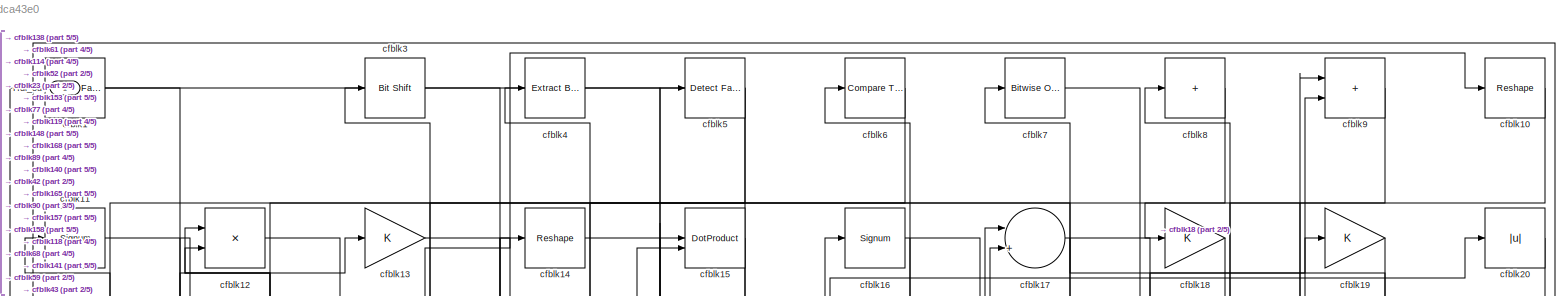
[diagram: root canvas - part 1/5, full width, top band]
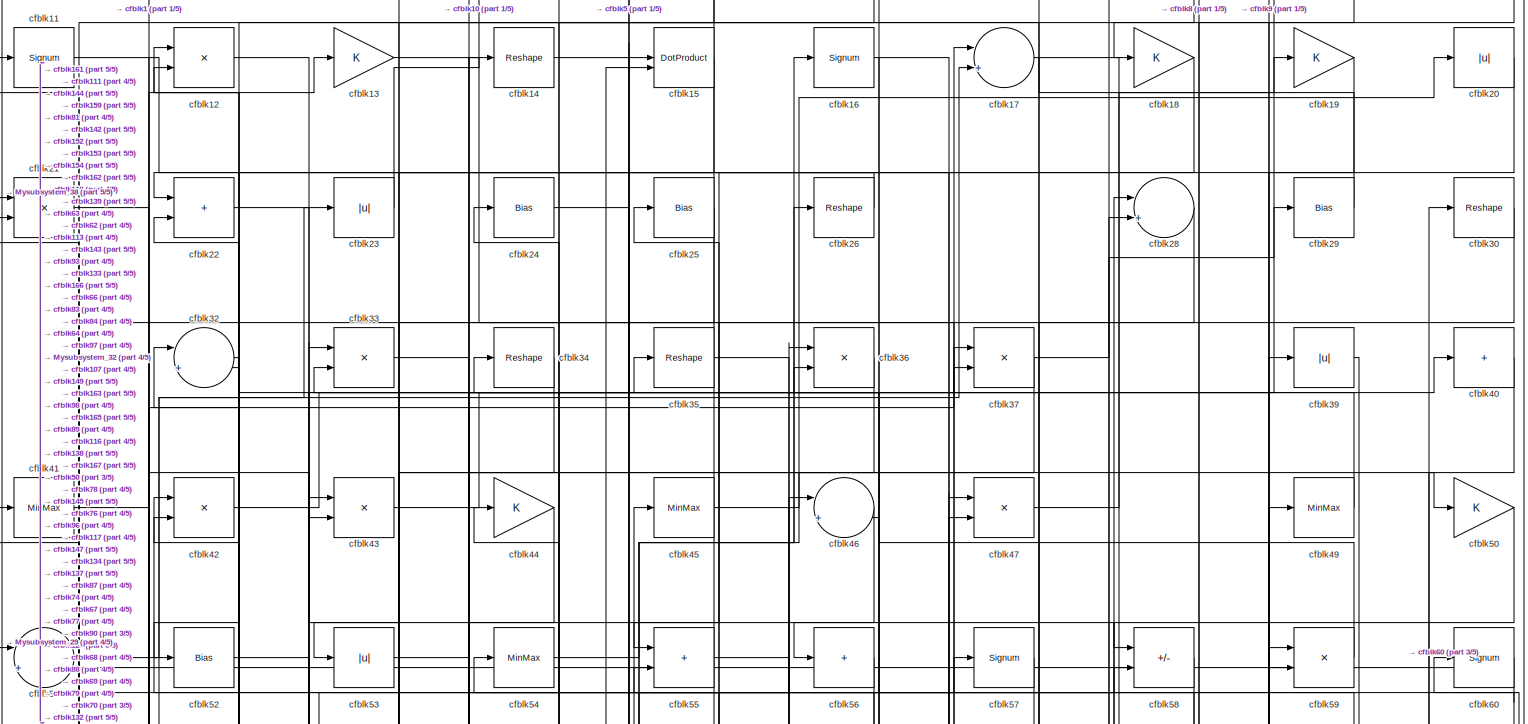
[diagram: root canvas - part 2/5, full width, top band]
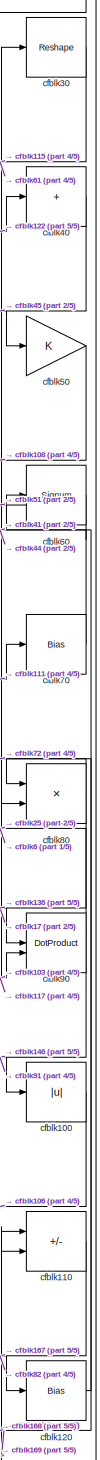
[diagram: root canvas - part 3/5, middle right region]
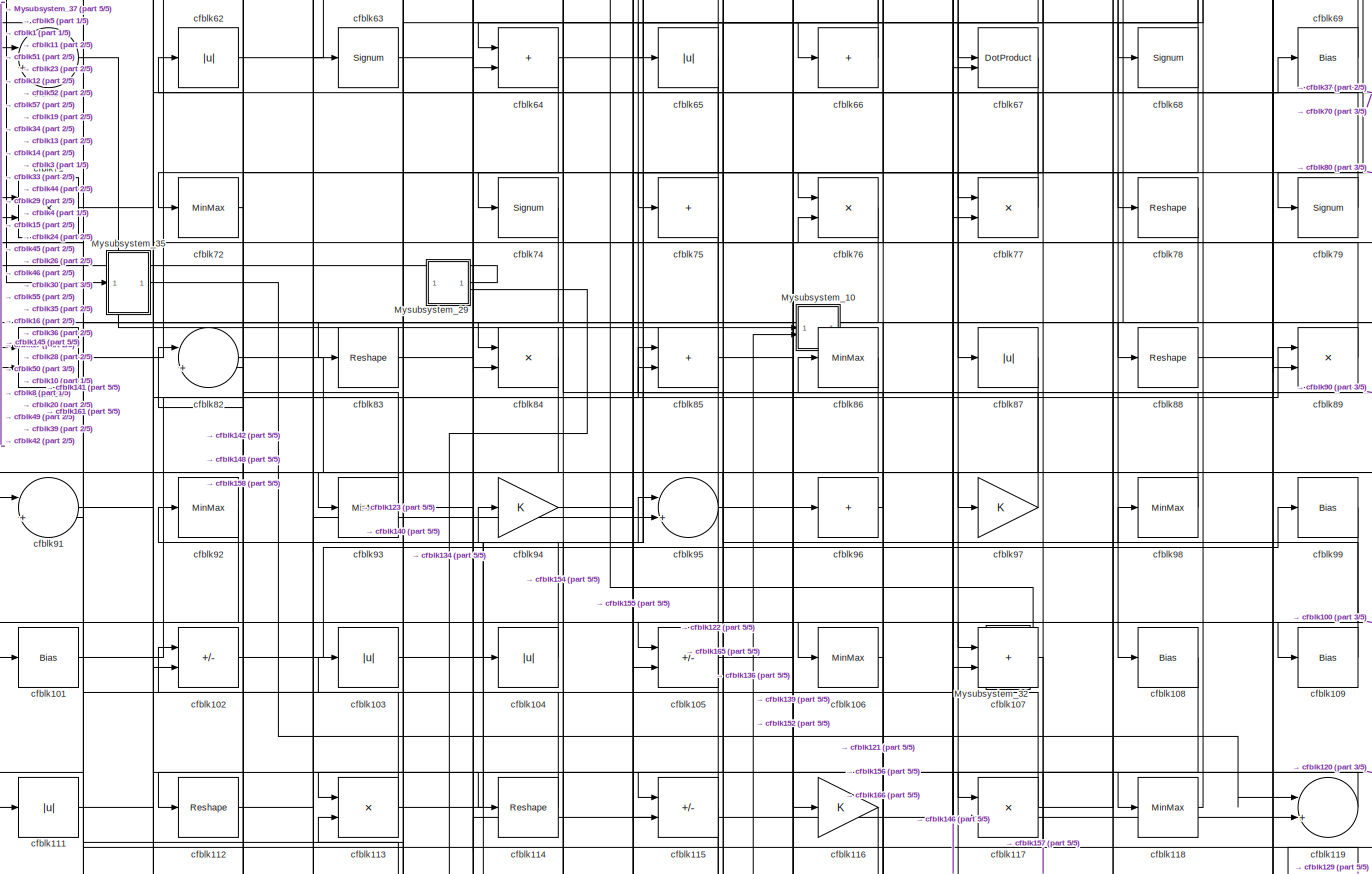
[diagram: root canvas - part 4/5, full width, middle band]
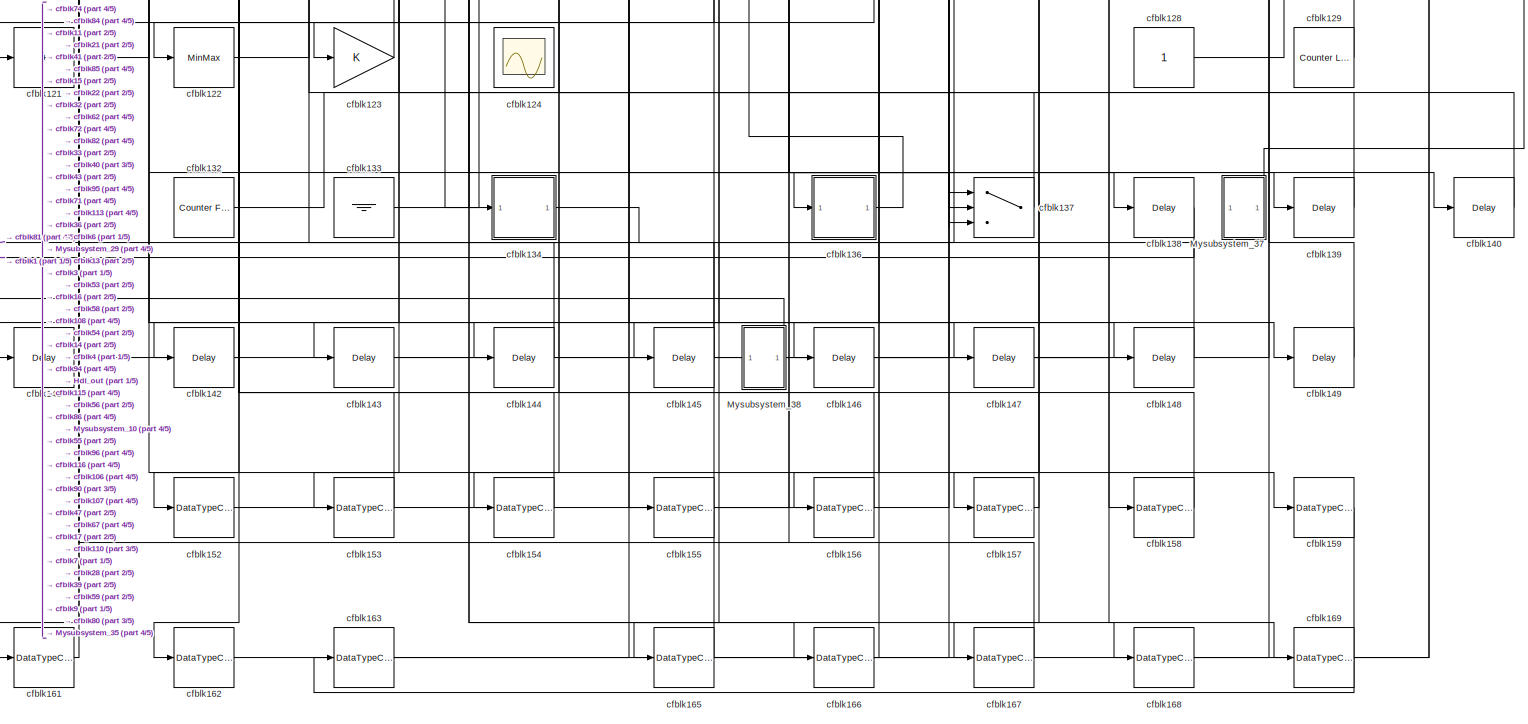
[diagram: root canvas - part 5/5, full width, bottom band]
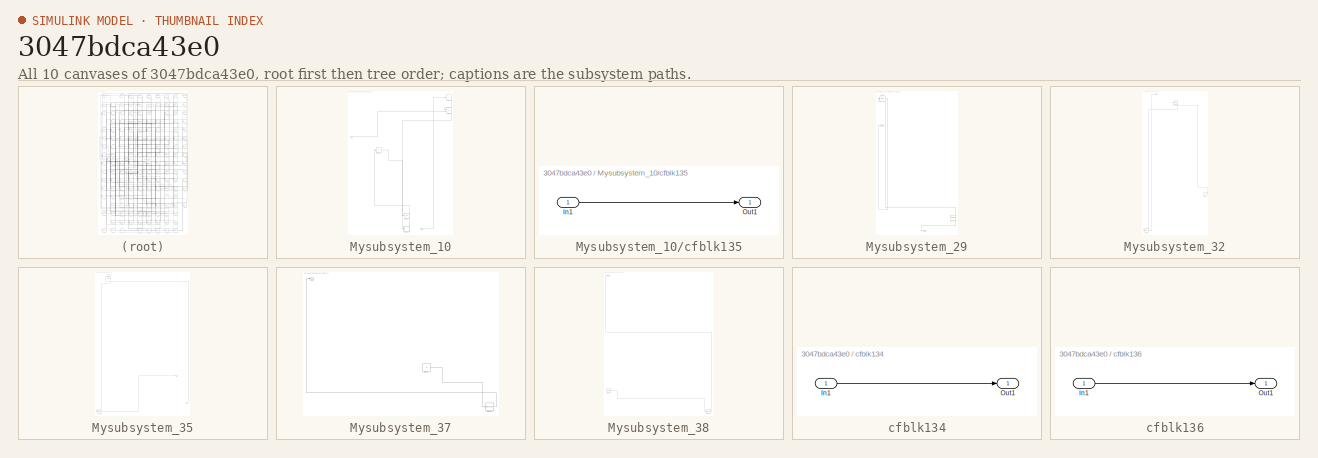
[diagram: thumbnail index - all 10 canvases of the model, root first then tree order]
MODEL slx_3047bdca43e0
KIND model
CONFIG AbsTol = auto
CONFIG EnableMultiTasking = off
CONFIG FixedStep = auto
CONFIG MaxStep = auto
CONFIG MinStep = auto
CONFIG RelTol = 1e-3
CONFIG SampleTimeConstraint = Unconstrained
CONFIG SolverName = VariableStepAuto
CONFIG StartTime = 0.0
CONFIG StopTime = 10.0
BLOCK [Outport] Hdl_out
  OutDataTypeStr = uint8
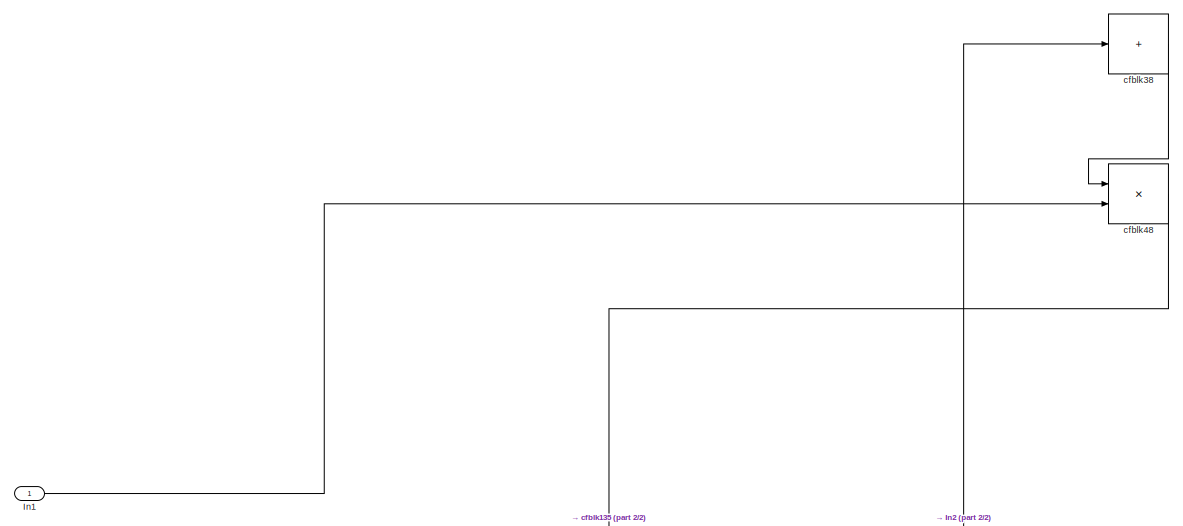
[diagram: Mysubsystem_10 - part 1/2, full width, top band]
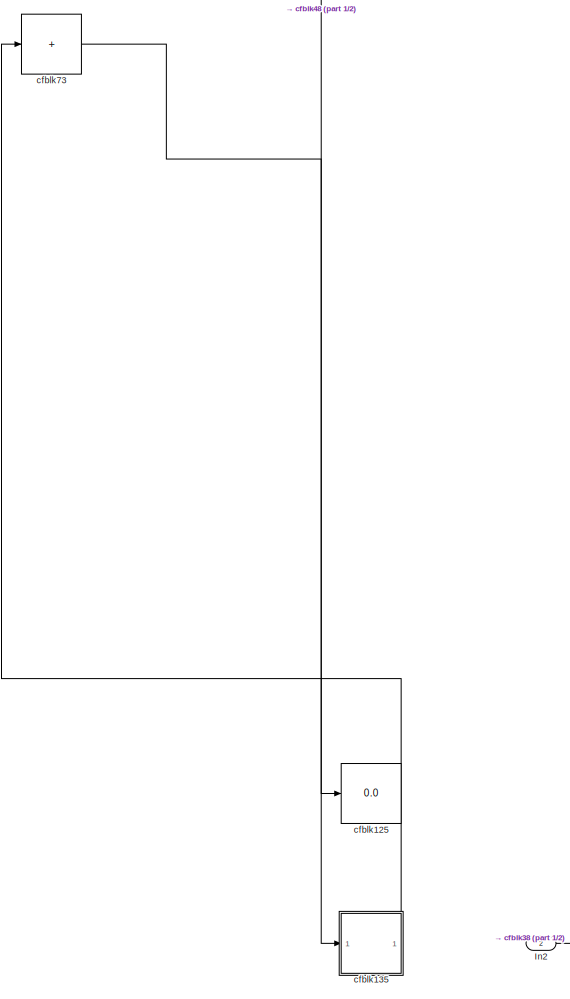
[diagram: Mysubsystem_10 - part 2/2, bottom center region]
BLOCK [SubSystem] Mysubsystem_10
  RTWFcnName = Mysubsystem_10
  RTWFcnNameOpts = User specified
  RTWFileNameOpts = Use function name
  RTWSystemCode = Reusable function
  TreatAsAtomicUnit = on
BLOCK [Inport] Mysubsystem_10/In1
BLOCK [Inport] Mysubsystem_10/In2
  Port = 2
BLOCK [Display] Mysubsystem_10/cfblk125
  Decimation = 1
BLOCK [SubSystem] Mysubsystem_10/cfblk135
  LibrarySourceBlock = hdlsllib/Ports &\nSubsystems/Subsystem
BLOCK [Inport] Mysubsystem_10/cfblk135/In1
BLOCK [Outport] Mysubsystem_10/cfblk135/Out1
BLOCK [Sum] Mysubsystem_10/cfblk38
  IconShape = rectangular
  Inputs = +
BLOCK [Product] Mysubsystem_10/cfblk48
  Inputs = */
  RndMeth = Zero
  SaturateOnIntegerOverflow = on
BLOCK [Sum] Mysubsystem_10/cfblk73
  IconShape = rectangular
  Inputs = +
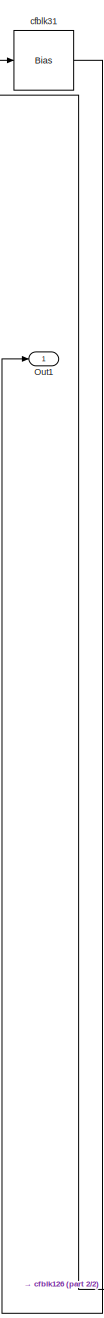
[diagram: Mysubsystem_29 - part 1/2, left side, full height]
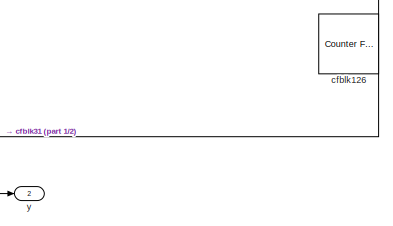
[diagram: Mysubsystem_29 - part 2/2, bottom right region]
BLOCK [SubSystem] Mysubsystem_29
  RTWFcnName = Mysubsystem_29
  RTWFcnNameOpts = User specified
  RTWFileNameOpts = Use function name
  RTWSystemCode = Reusable function
  TreatAsAtomicUnit = on
BLOCK [Outport] Mysubsystem_29/Out1
BLOCK [Reference] Mysubsystem_29/cfblk126  REF=hdlsllib/Sources/Counter
Free-Running
  SourceBlock = hdlsllib/Sources/Counter\nFree-Running
  SourceType = Counter Free-Running
BLOCK [Bias] Mysubsystem_29/cfblk31
  Bias = 0.0
  SaturateOnIntegerOverflow = off
BLOCK [Outport] Mysubsystem_29/y
  Port = 2
BLOCK [SubSystem] Mysubsystem_32
  RTWFcnName = Mysubsystem_32
  RTWFcnNameOpts = User specified
  RTWFileNameOpts = Use function name
  RTWSystemCode = Reusable function
  TreatAsAtomicUnit = on
BLOCK [Outport] Mysubsystem_32/Out1
BLOCK [Constant] Mysubsystem_32/cfblk130
  SampleTime = -1
BLOCK [DataTypeConversion] Mysubsystem_32/cfblk164
  OutDataTypeStr = uint8
  RndMeth = Floor
  SaturateOnIntegerOverflow = off
BLOCK [Reshape] Mysubsystem_32/cfblk27
BLOCK [SubSystem] Mysubsystem_35
  RTWFcnName = Mysubsystem_35
  RTWFcnNameOpts = User specified
  RTWFileNameOpts = Use function name
  RTWSystemCode = Reusable function
  TreatAsAtomicUnit = on
BLOCK [Inport] Mysubsystem_35/In1
BLOCK [Outport] Mysubsystem_35/Out1
BLOCK [DataTypeConversion] Mysubsystem_35/cfblk151
  OutDataTypeStr = uint8
  RndMeth = Floor
  SaturateOnIntegerOverflow = off
BLOCK [Reference] Mysubsystem_35/cfblk2  REF=simulink/Logic and Bit
Operations/Bitwise
Operator
  LibrarySourceBlock = hdlsllib/Logic and Bit\nOperations/Bitwise\nOperator
  SourceBlock = simulink/Logic and Bit\nOperations/Bitwise\nOperator
  SourceType = Bitwise Operator
BLOCK [SubSystem] Mysubsystem_37
  RTWFcnName = Mysubsystem_37
  RTWFcnNameOpts = User specified
  RTWFileNameOpts = Use function name
  RTWSystemCode = Reusable function
  TreatAsAtomicUnit = on
BLOCK [Outport] Mysubsystem_37/Out1
BLOCK [Constant] Mysubsystem_37/cfblk127
  SampleTime = -1
BLOCK [DataTypeConversion] Mysubsystem_37/cfblk150
  OutDataTypeStr = boolean
  RndMeth = Floor
  SaturateOnIntegerOverflow = off
BLOCK [SubSystem] Mysubsystem_38
  RTWFcnName = Mysubsystem_38
  RTWFcnNameOpts = User specified
  RTWFileNameOpts = Use function name
  RTWSystemCode = Reusable function
  TreatAsAtomicUnit = on
BLOCK [Outport] Mysubsystem_38/Out1
BLOCK [Reference] Mysubsystem_38/cfblk131  REF=hdlsllib/Sources/Counter
Free-Running
  SourceBlock = hdlsllib/Sources/Counter\nFree-Running
  SourceType = Counter Free-Running
BLOCK [DataTypeConversion] Mysubsystem_38/cfblk160
  OutDataTypeStr = uint8
  RndMeth = Floor
  SaturateOnIntegerOverflow = off
BLOCK [Reference] cfblk1  REF=hdlsllib/Logic and Bit
Operations/Detect Fall
Nonpositive
  SourceBlock = hdlsllib/Logic and Bit\nOperations/Detect Fall\nNonpositive
  SourceType = Detect Fall Nonpositive
BLOCK [Reshape] cfblk10
BLOCK [Abs] cfblk100
  OutDataTypeStr = uint8
  SaturateOnIntegerOverflow = off
BLOCK [Bias] cfblk101
  Bias = 0.0
  SaturateOnIntegerOverflow = off
BLOCK [Sum] cfblk102
  IconShape = rectangular
  Inputs = +-
  OutDataTypeStr = uint8
BLOCK [Abs] cfblk103
  OutDataTypeStr = uint8
  SaturateOnIntegerOverflow = off
BLOCK [Abs] cfblk104
  OutDataTypeStr = uint8
  SaturateOnIntegerOverflow = off
BLOCK [Sum] cfblk105
  IconShape = rectangular
  Inputs = +-
  OutDataTypeStr = uint8
BLOCK [MinMax] cfblk106
  OutDataTypeStr = uint8
BLOCK [Sum] cfblk107
  IconShape = rectangular
  OutDataTypeStr = uint8
BLOCK [Bias] cfblk108
  Bias = 0.0
  SaturateOnIntegerOverflow = off
BLOCK [Bias] cfblk109
  Bias = 0.0
  SaturateOnIntegerOverflow = off
BLOCK [Signum] cfblk11
BLOCK [Sum] cfblk110
  IconShape = rectangular
  Inputs = +-
  OutDataTypeStr = uint8
BLOCK [Abs] cfblk111
  OutDataTypeStr = uint8
  SaturateOnIntegerOverflow = off
BLOCK [Reshape] cfblk112
BLOCK [Product] cfblk113
  Inputs = */
  OutDataTypeStr = uint8
  RndMeth = Zero
  SaturateOnIntegerOverflow = on
BLOCK [Reshape] cfblk114
BLOCK [Sum] cfblk115
  IconShape = rectangular
  Inputs = +-
  OutDataTypeStr = uint8
BLOCK [Gain] cfblk116
  OutDataTypeStr = uint8
BLOCK [Product] cfblk117
  Inputs = */
  OutDataTypeStr = uint8
  RndMeth = Zero
  SaturateOnIntegerOverflow = on
BLOCK [MinMax] cfblk118
  OutDataTypeStr = uint8
BLOCK [Sum] cfblk119
  Inputs = |++
  OutDataTypeStr = uint8
BLOCK [Product] cfblk12
  Inputs = */
  OutDataTypeStr = uint8
  RndMeth = Zero
  SaturateOnIntegerOverflow = on
BLOCK [Bias] cfblk120
  Bias = 0.0
  SaturateOnIntegerOverflow = off
BLOCK [Sum] cfblk121
  IconShape = rectangular
  Inputs = +
  OutDataTypeStr = uint8
BLOCK [MinMax] cfblk122
  OutDataTypeStr = uint8
BLOCK [Gain] cfblk123
  OutDataTypeStr = uint8
BLOCK [Scope] cfblk124
  Floating = on
  NumInputPorts = 1
  ScopeSpecificationString = Simulink.scopes.TimeScopeBlockCfg('CurrentConfiguration', extmgr.ConfigurationSet(extmgr.Configuration('Core','General UI',true,'FigureColor',[0.156862745098039 0.156862745098039 0.156862745098039]),extmgr.Configuration('Core','Source UI',true),extmgr.Configuration('Sources','WiredSimulink',true,'DataLoggingVariableName','ScopeData1','DataLoggingSaveFormat','StructureWithTime','DataLoggingLimitDat...<+2713ch>
BLOCK [Constant] cfblk128
  OutDataTypeStr = uint8
  SampleTime = -1
BLOCK [Reference] cfblk129  REF=hdlsllib/Sources/Counter
Limited
  SourceBlock = hdlsllib/Sources/Counter\nLimited
  SourceType = Counter Limited
BLOCK [Gain] cfblk13
  OutDataTypeStr = uint8
BLOCK [Reference] cfblk132  REF=hdlsllib/Sources/Counter
Free-Running
  SourceBlock = hdlsllib/Sources/Counter\nFree-Running
  SourceType = Counter Free-Running
BLOCK [Ground] cfblk133
BLOCK [SubSystem] cfblk134
  LibrarySourceBlock = hdlsllib/Ports &\nSubsystems/Subsystem
BLOCK [Inport] cfblk134/In1
BLOCK [Outport] cfblk134/Out1
BLOCK [SubSystem] cfblk136
  LibrarySourceBlock = hdlsllib/Ports &\nSubsystems/Subsystem
BLOCK [Inport] cfblk136/In1
BLOCK [Outport] cfblk136/Out1
BLOCK [Switch] cfblk137
  InputSameDT = off
  OutDataTypeStr = uint8
  SaturateOnIntegerOverflow = off
BLOCK [Delay] cfblk138
  InputPortMap = u0
  SampleTime = 1
BLOCK [Delay] cfblk139
  InputPortMap = u0
  SampleTime = 1
BLOCK [Reshape] cfblk14
BLOCK [Delay] cfblk140
  InputPortMap = u0
  SampleTime = 1
BLOCK [Delay] cfblk141
  InputPortMap = u0
  SampleTime = 1
BLOCK [Delay] cfblk142
  InputPortMap = u0
  SampleTime = 1
BLOCK [Delay] cfblk143
  InputPortMap = u0
  SampleTime = 1
BLOCK [Delay] cfblk144
  InputPortMap = u0
  SampleTime = 1
BLOCK [Delay] cfblk145
  InputPortMap = u0
  SampleTime = 1
BLOCK [Delay] cfblk146
  InputPortMap = u0
  SampleTime = 1
BLOCK [Delay] cfblk147
  InputPortMap = u0
  SampleTime = 1
BLOCK [Delay] cfblk148
  InputPortMap = u0
  SampleTime = 1
BLOCK [Delay] cfblk149
  InputPortMap = u0
  SampleTime = 1
BLOCK [DotProduct] cfblk15
  OutDataTypeStr = uint8
BLOCK [DataTypeConversion] cfblk152
  OutDataTypeStr = uint8
  RndMeth = Floor
  SaturateOnIntegerOverflow = off
BLOCK [DataTypeConversion] cfblk153
  OutDataTypeStr = uint8
  RndMeth = Floor
  SaturateOnIntegerOverflow = off
BLOCK [DataTypeConversion] cfblk154
  OutDataTypeStr = uint8
  RndMeth = Floor
  SaturateOnIntegerOverflow = off
BLOCK [DataTypeConversion] cfblk155
  OutDataTypeStr = uint8
  RndMeth = Floor
  SaturateOnIntegerOverflow = off
BLOCK [DataTypeConversion] cfblk156
  OutDataTypeStr = uint8
  RndMeth = Floor
  SaturateOnIntegerOverflow = off
BLOCK [DataTypeConversion] cfblk157
  OutDataTypeStr = uint8
  RndMeth = Floor
  SaturateOnIntegerOverflow = off
BLOCK [DataTypeConversion] cfblk158
  OutDataTypeStr = uint8
  RndMeth = Floor
  SaturateOnIntegerOverflow = off
BLOCK [DataTypeConversion] cfblk159
  OutDataTypeStr = uint8
  RndMeth = Floor
  SaturateOnIntegerOverflow = off
BLOCK [Signum] cfblk16
BLOCK [DataTypeConversion] cfblk161
  OutDataTypeStr = uint8
  RndMeth = Floor
  SaturateOnIntegerOverflow = off
BLOCK [DataTypeConversion] cfblk162
  OutDataTypeStr = uint8
  RndMeth = Floor
  SaturateOnIntegerOverflow = off
BLOCK [DataTypeConversion] cfblk163
  OutDataTypeStr = uint8
  RndMeth = Floor
  SaturateOnIntegerOverflow = off
BLOCK [DataTypeConversion] cfblk165
  OutDataTypeStr = uint8
  RndMeth = Floor
  SaturateOnIntegerOverflow = off
BLOCK [DataTypeConversion] cfblk166
  OutDataTypeStr = uint8
  RndMeth = Floor
  SaturateOnIntegerOverflow = off
BLOCK [DataTypeConversion] cfblk167
  OutDataTypeStr = uint8
  RndMeth = Floor
  SaturateOnIntegerOverflow = off
BLOCK [DataTypeConversion] cfblk168
  OutDataTypeStr = uint8
  RndMeth = Floor
  SaturateOnIntegerOverflow = off
BLOCK [DataTypeConversion] cfblk169
  OutDataTypeStr = uint8
  RndMeth = Floor
  SaturateOnIntegerOverflow = off
BLOCK [Sum] cfblk17
  Inputs = |++
  OutDataTypeStr = uint8
BLOCK [Gain] cfblk18
  OutDataTypeStr = uint8
BLOCK [Gain] cfblk19
  OutDataTypeStr = uint8
BLOCK [Abs] cfblk20
  OutDataTypeStr = uint8
  SaturateOnIntegerOverflow = off
BLOCK [Product] cfblk21
  Inputs = */
  OutDataTypeStr = uint8
  RndMeth = Zero
  SaturateOnIntegerOverflow = on
BLOCK [Sum] cfblk22
  IconShape = rectangular
  OutDataTypeStr = uint8
BLOCK [Abs] cfblk23
  OutDataTypeStr = uint8
  SaturateOnIntegerOverflow = off
BLOCK [Bias] cfblk24
  Bias = 0.0
  SaturateOnIntegerOverflow = off
BLOCK [Bias] cfblk25
  Bias = 0.0
  SaturateOnIntegerOverflow = off
BLOCK [Reshape] cfblk26
BLOCK [Sum] cfblk28
  Inputs = |++
  OutDataTypeStr = uint8
BLOCK [Bias] cfblk29
  Bias = 0.0
  SaturateOnIntegerOverflow = off
BLOCK [Reference] cfblk3  REF=hdlsllib/Logic and Bit
Operations/Bit Shift
  SourceBlock = hdlsllib/Logic and Bit\nOperations/Bit Shift
  SourceType = Bit Shift
BLOCK [Reshape] cfblk30
BLOCK [Sum] cfblk32
  Inputs = |++
  OutDataTypeStr = uint8
BLOCK [Product] cfblk33
  Inputs = */
  OutDataTypeStr = uint8
  RndMeth = Zero
  SaturateOnIntegerOverflow = on
BLOCK [Reshape] cfblk34
BLOCK [Reshape] cfblk35
BLOCK [Product] cfblk36
  Inputs = */
  OutDataTypeStr = uint8
  RndMeth = Zero
  SaturateOnIntegerOverflow = on
BLOCK [Product] cfblk37
  Inputs = */
  OutDataTypeStr = uint8
  RndMeth = Zero
  SaturateOnIntegerOverflow = on
BLOCK [Abs] cfblk39
  OutDataTypeStr = uint8
  SaturateOnIntegerOverflow = off
BLOCK [Reference] cfblk4  REF=simulink/Logic and Bit
Operations/Extract Bits
  LibrarySourceBlock = hdlsllib/Logic and Bit\nOperations/Extract Bits
  SourceBlock = simulink/Logic and Bit\nOperations/Extract Bits
  SourceType = Extract Bits
BLOCK [Sum] cfblk40
  IconShape = rectangular
  Inputs = +
  OutDataTypeStr = uint8
BLOCK [MinMax] cfblk41
  OutDataTypeStr = uint8
BLOCK [Product] cfblk42
  Inputs = */
  OutDataTypeStr = uint8
  RndMeth = Zero
  SaturateOnIntegerOverflow = on
BLOCK [Product] cfblk43
  Inputs = */
  OutDataTypeStr = uint8
  RndMeth = Zero
  SaturateOnIntegerOverflow = on
BLOCK [Gain] cfblk44
  OutDataTypeStr = uint8
BLOCK [MinMax] cfblk45
  OutDataTypeStr = uint8
BLOCK [Sum] cfblk46
  Inputs = |++
  OutDataTypeStr = uint8
BLOCK [Product] cfblk47
  Inputs = */
  OutDataTypeStr = uint8
  RndMeth = Zero
  SaturateOnIntegerOverflow = on
BLOCK [MinMax] cfblk49
  OutDataTypeStr = uint8
BLOCK [Reference] cfblk5  REF=hdlsllib/Logic and Bit
Operations/Detect Fall
Nonpositive
  SourceBlock = hdlsllib/Logic and Bit\nOperations/Detect Fall\nNonpositive
  SourceType = Detect Fall Nonpositive
BLOCK [Gain] cfblk50
  OutDataTypeStr = uint8
BLOCK [Sum] cfblk51
  Inputs = |++
  OutDataTypeStr = uint8
BLOCK [Bias] cfblk52
  Bias = 0.0
  SaturateOnIntegerOverflow = off
BLOCK [Abs] cfblk53
  OutDataTypeStr = uint8
  SaturateOnIntegerOverflow = off
BLOCK [MinMax] cfblk54
  OutDataTypeStr = uint8
BLOCK [Sum] cfblk55
  IconShape = rectangular
  OutDataTypeStr = uint8
BLOCK [Sum] cfblk56
  IconShape = rectangular
  Inputs = +
  OutDataTypeStr = uint8
BLOCK [Signum] cfblk57
BLOCK [Sum] cfblk58
  IconShape = rectangular
  Inputs = +-
  OutDataTypeStr = uint8
BLOCK [Product] cfblk59
  Inputs = */
  OutDataTypeStr = uint8
  RndMeth = Zero
  SaturateOnIntegerOverflow = on
BLOCK [Reference] cfblk6  REF=hdlsllib/Logic and Bit
Operations/Compare
To Constant
  SourceBlock = hdlsllib/Logic and Bit\nOperations/Compare\nTo Constant
  SourceType = Compare To Constant
BLOCK [Signum] cfblk60
BLOCK [Sum] cfblk61
  Inputs = |++
  OutDataTypeStr = uint8
BLOCK [Abs] cfblk62
  OutDataTypeStr = uint8
  SaturateOnIntegerOverflow = off
BLOCK [Signum] cfblk63
BLOCK [Sum] cfblk64
  IconShape = rectangular
  OutDataTypeStr = uint8
BLOCK [Abs] cfblk65
  OutDataTypeStr = uint8
  SaturateOnIntegerOverflow = off
BLOCK [Sum] cfblk66
  IconShape = rectangular
  Inputs = +
  OutDataTypeStr = uint8
BLOCK [DotProduct] cfblk67
  OutDataTypeStr = uint8
BLOCK [Signum] cfblk68
BLOCK [Bias] cfblk69
  Bias = 0.0
  SaturateOnIntegerOverflow = off
BLOCK [Reference] cfblk7  REF=simulink/Logic and Bit
Operations/Bitwise
Operator
  LibrarySourceBlock = hdlsllib/Logic and Bit\nOperations/Bitwise\nOperator
  SourceBlock = simulink/Logic and Bit\nOperations/Bitwise\nOperator
  SourceType = Bitwise Operator
BLOCK [Bias] cfblk70
  Bias = 0.0
  SaturateOnIntegerOverflow = off
BLOCK [Product] cfblk71
  Inputs = */
  OutDataTypeStr = uint8
  RndMeth = Zero
  SaturateOnIntegerOverflow = on
BLOCK [MinMax] cfblk72
  OutDataTypeStr = uint8
BLOCK [Signum] cfblk74
BLOCK [Sum] cfblk75
  IconShape = rectangular
  Inputs = +
  OutDataTypeStr = uint8
BLOCK [Product] cfblk76
  Inputs = */
  OutDataTypeStr = uint8
  RndMeth = Zero
  SaturateOnIntegerOverflow = on
BLOCK [Product] cfblk77
  Inputs = */
  OutDataTypeStr = uint8
  RndMeth = Zero
  SaturateOnIntegerOverflow = on
BLOCK [Reshape] cfblk78
BLOCK [Signum] cfblk79
BLOCK [Sum] cfblk8
  IconShape = rectangular
  Inputs = +
  OutDataTypeStr = uint8
BLOCK [Product] cfblk80
  Inputs = */
  OutDataTypeStr = uint8
  RndMeth = Zero
  SaturateOnIntegerOverflow = on
BLOCK [Sum] cfblk81
  IconShape = rectangular
  OutDataTypeStr = uint8
BLOCK [Sum] cfblk82
  Inputs = |++
  OutDataTypeStr = uint8
BLOCK [Reshape] cfblk83
BLOCK [Product] cfblk84
  Inputs = */
  OutDataTypeStr = uint8
  RndMeth = Zero
  SaturateOnIntegerOverflow = on
BLOCK [Sum] cfblk85
  IconShape = rectangular
  OutDataTypeStr = uint8
BLOCK [MinMax] cfblk86
  OutDataTypeStr = uint8
BLOCK [Abs] cfblk87
  OutDataTypeStr = uint8
  SaturateOnIntegerOverflow = off
BLOCK [Reshape] cfblk88
BLOCK [Product] cfblk89
  Inputs = */
  OutDataTypeStr = uint8
  RndMeth = Zero
  SaturateOnIntegerOverflow = on
BLOCK [Sum] cfblk9
  IconShape = rectangular
  OutDataTypeStr = uint8
BLOCK [DotProduct] cfblk90
  OutDataTypeStr = uint8
BLOCK [Sum] cfblk91
  Inputs = |++
  OutDataTypeStr = uint8
BLOCK [MinMax] cfblk92
  OutDataTypeStr = uint8
BLOCK [MinMax] cfblk93
  OutDataTypeStr = uint8
BLOCK [Gain] cfblk94
  OutDataTypeStr = uint8
BLOCK [Sum] cfblk95
  Inputs = |++
  OutDataTypeStr = uint8
BLOCK [Sum] cfblk96
  IconShape = rectangular
  Inputs = +
  OutDataTypeStr = uint8
BLOCK [Gain] cfblk97
  OutDataTypeStr = uint8
BLOCK [MinMax] cfblk98
  OutDataTypeStr = uint8
BLOCK [Bias] cfblk99
  Bias = 0.0
  SaturateOnIntegerOverflow = off
LINE Mysubsystem_10/In1:1 -> Mysubsystem_10/cfblk48:2
LINE Mysubsystem_10/In2:1 -> Mysubsystem_10/cfblk38:1
LINE Mysubsystem_10/cfblk135/In1:1 -> Mysubsystem_10/cfblk135/Out1:1
LINE Mysubsystem_10/cfblk135:1 -> Mysubsystem_10/cfblk73:1
LINE Mysubsystem_10/cfblk38:1 -> Mysubsystem_10/cfblk48:1
LINE Mysubsystem_10/cfblk48:1 -> Mysubsystem_10/cfblk135:1
LINE Mysubsystem_10/cfblk73:1 -> Mysubsystem_10/cfblk125:1
NET Mysubsystem_29/cfblk126:1 -> Mysubsystem_29/cfblk31:1, Mysubsystem_29/y:1
LINE Mysubsystem_29/cfblk31:1 -> Mysubsystem_29/Out1:1
LINE Mysubsystem_29:1 -> cfblk51:1
LINE Mysubsystem_29:2 -> cfblk134:1
LINE Mysubsystem_32/cfblk130:1 -> Mysubsystem_32/cfblk27:1
LINE Mysubsystem_32/cfblk164:1 -> Mysubsystem_32/Out1:1
LINE Mysubsystem_32/cfblk27:1 -> Mysubsystem_32/cfblk164:1
LINE Mysubsystem_32:1 -> cfblk15:2
LINE Mysubsystem_35/In1:1 -> Mysubsystem_35/cfblk2:1
LINE Mysubsystem_35/cfblk151:1 -> Mysubsystem_35/Out1:1
LINE Mysubsystem_35/cfblk2:1 -> Mysubsystem_35/cfblk151:1
LINE Mysubsystem_35:1 -> cfblk119:1
LINE Mysubsystem_37/cfblk127:1 -> Mysubsystem_37/cfblk150:1
LINE Mysubsystem_37/cfblk150:1 -> Mysubsystem_37/Out1:1
LINE Mysubsystem_37:1 -> Mysubsystem_35:1
LINE Mysubsystem_38/cfblk131:1 -> Mysubsystem_38/cfblk160:1
LINE Mysubsystem_38/cfblk160:1 -> Mysubsystem_38/Out1:1
LINE Mysubsystem_38:1 -> cfblk21:1
LINE cfblk100:1 -> cfblk106:1
LINE cfblk101:1 -> cfblk89:1
LINE cfblk102:1 -> cfblk99:1
LINE cfblk103:1 -> cfblk30:1
LINE cfblk104:1 -> cfblk92:1
LINE cfblk105:1 -> cfblk98:1
LINE cfblk106:1 -> cfblk156:1
LINE cfblk107:1 -> cfblk157:1
LINE cfblk108:1 -> cfblk154:1
LINE cfblk109:1 -> cfblk85:1
LINE cfblk10:1 -> cfblk68:1
LINE cfblk110:1 -> cfblk167:1
NET cfblk111:1 -> cfblk37:2, cfblk70:1
LINE cfblk112:1 -> cfblk95:1
NET cfblk113:1 -> cfblk103:1, cfblk26:1, cfblk91:2
LINE cfblk114:1 -> cfblk102:1
LINE cfblk115:1 -> cfblk122:1
LINE cfblk116:1 -> cfblk121:1
NET cfblk117:1 -> cfblk42:2, cfblk90:2
LINE cfblk118:1 -> cfblk8:1
LINE cfblk119:1 -> cfblk117:1
NET cfblk11:1 -> cfblk117:2, cfblk137:3, cfblk147:1
LINE cfblk120:1 -> cfblk60:1
LINE cfblk121:1 -> cfblk85:2
NET cfblk122:1 -> cfblk40:1, cfblk95:2
LINE cfblk123:1 -> cfblk71:1
LINE cfblk128:1 -> cfblk80:1
LINE cfblk129:1 -> cfblk71:2
LINE cfblk12:1 -> cfblk63:1
LINE cfblk132:1 -> cfblk47:1
NET cfblk133:1 -> cfblk16:1, cfblk58:2
LINE cfblk134/In1:1 -> cfblk134/Out1:1
LINE cfblk134:1 -> cfblk17:1
LINE cfblk136/In1:1 -> cfblk136/Out1:1
LINE cfblk136:1 -> Mysubsystem_10:2
LINE cfblk137:1 -> cfblk54:1
LINE cfblk138:1 -> cfblk1:1
LINE cfblk139:1 -> cfblk33:1
NET cfblk13:1 -> cfblk137:2, cfblk87:1
LINE cfblk140:1 -> cfblk113:2
LINE cfblk141:1 -> cfblk9:1
LINE cfblk142:1 -> cfblk22:2
LINE cfblk143:1 -> cfblk28:2
LINE cfblk144:1 -> cfblk43:1
LINE cfblk145:1 -> cfblk81:1
LINE cfblk146:1 -> cfblk107:2
LINE cfblk147:1 -> cfblk169:1
LINE cfblk148:1 -> cfblk82:1
LINE cfblk149:1 -> cfblk59:1
LINE cfblk14:1 -> cfblk149:1
LINE cfblk152:1 -> cfblk96:1
LINE cfblk153:1 -> cfblk32:1
LINE cfblk154:1 -> cfblk32:2
LINE cfblk155:1 -> cfblk67:2
LINE cfblk156:1 -> cfblk94:1
LINE cfblk157:1 -> cfblk7:1
LINE cfblk158:1 -> cfblk62:1
LINE cfblk159:1 -> cfblk163:1
LINE cfblk15:1 -> cfblk162:1
LINE cfblk161:1 -> cfblk21:2
LINE cfblk162:1 -> cfblk47:2
LINE cfblk163:1 -> cfblk15:1
NET cfblk165:1 -> Hdl_out:1, cfblk39:1
LINE cfblk166:1 -> cfblk86:1
NET cfblk167:1 -> cfblk11:1, cfblk36:1
LINE cfblk168:1 -> cfblk110:1
LINE cfblk169:1 -> cfblk110:2
NET cfblk16:1 -> cfblk137:1, cfblk76:1
NET cfblk17:1 -> cfblk77:1, cfblk90:1
LINE cfblk18:1 -> cfblk55:1
LINE cfblk19:1 -> cfblk113:1
NET cfblk1:1 -> cfblk114:1, cfblk43:2
LINE cfblk20:1 -> cfblk89:2
LINE cfblk21:1 -> cfblk159:1
LINE cfblk22:1 -> cfblk58:1
LINE cfblk23:1 -> cfblk10:1
NET cfblk24:1 -> cfblk107:1, cfblk77:2
LINE cfblk25:1 -> cfblk53:1
LINE cfblk26:1 -> cfblk22:1
LINE cfblk28:1 -> cfblk67:1
LINE cfblk29:1 -> cfblk64:1
NET cfblk30:1 -> cfblk115:1, cfblk61:2
LINE cfblk32:1 -> cfblk152:1
LINE cfblk33:1 -> cfblk66:1
LINE cfblk34:1 -> cfblk93:1
LINE cfblk35:1 -> cfblk116:1
LINE cfblk36:1 -> cfblk143:1
NET cfblk37:1 -> cfblk29:1, cfblk84:2
LINE cfblk39:1 -> cfblk79:1
NET cfblk3:1 -> cfblk119:2, cfblk148:1, cfblk168:1
LINE cfblk40:1 -> cfblk80:2
LINE cfblk41:1 -> cfblk144:1
LINE cfblk42:1 -> cfblk5:1
NET cfblk43:1 -> cfblk37:1, cfblk9:2
LINE cfblk44:1 -> cfblk64:2
NET cfblk45:1 -> cfblk50:1, cfblk78:1
LINE cfblk46:1 -> cfblk56:1
LINE cfblk47:1 -> cfblk19:1
NET cfblk49:1 -> cfblk12:1, cfblk35:1
LINE cfblk4:1 -> cfblk140:1
LINE cfblk50:1 -> cfblk108:1
NET cfblk51:1 -> cfblk13:1, cfblk17:2, cfblk88:1
LINE cfblk52:1 -> cfblk118:1
LINE cfblk53:1 -> cfblk166:1
LINE cfblk54:1 -> cfblk20:1
LINE cfblk55:1 -> cfblk138:1
LINE cfblk56:1 -> cfblk145:1
LINE cfblk57:1 -> cfblk74:1
LINE cfblk58:1 -> cfblk123:1
LINE cfblk59:1 -> cfblk33:2
LINE cfblk5:1 -> cfblk61:1
LINE cfblk60:1 -> cfblk51:2
LINE cfblk61:1 -> Mysubsystem_10:1
LINE cfblk62:1 -> cfblk57:1
LINE cfblk63:1 -> cfblk104:1
NET cfblk64:1 -> cfblk112:1, cfblk46:1
LINE cfblk65:1 -> cfblk83:1
LINE cfblk66:1 -> cfblk24:1
LINE cfblk67:1 -> cfblk105:2
NET cfblk68:1 -> cfblk46:2, cfblk65:1, cfblk75:1
LINE cfblk69:1 -> cfblk42:1
LINE cfblk6:1 -> cfblk153:1
NET cfblk70:1 -> cfblk41:1, cfblk44:1
NET cfblk71:1 -> cfblk76:2, cfblk97:1
LINE cfblk72:1 -> cfblk142:1
LINE cfblk74:1 -> cfblk161:1
NET cfblk75:1 -> cfblk82:2, cfblk84:1, cfblk91:1
LINE cfblk76:1 -> cfblk81:2
LINE cfblk77:1 -> cfblk3:1
LINE cfblk78:1 -> cfblk111:1
LINE cfblk79:1 -> cfblk28:1
LINE cfblk7:1 -> cfblk158:1
NET cfblk80:1 -> cfblk136:1, cfblk72:1
LINE cfblk81:1 -> cfblk23:1
NET cfblk82:1 -> cfblk115:2, cfblk120:1
LINE cfblk83:1 -> cfblk14:1
LINE cfblk84:1 -> cfblk141:1
LINE cfblk85:1 -> cfblk139:1
LINE cfblk86:1 -> cfblk165:1
LINE cfblk87:1 -> cfblk105:1
LINE cfblk88:1 -> cfblk49:1
NET cfblk89:1 -> cfblk4:1, cfblk55:2
LINE cfblk8:1 -> cfblk18:1
NET cfblk90:1 -> cfblk146:1, cfblk25:1, cfblk6:1
LINE cfblk91:1 -> cfblk100:1
LINE cfblk92:1 -> cfblk102:2
NET cfblk93:1 -> cfblk109:1, cfblk12:2
LINE cfblk94:1 -> cfblk155:1
LINE cfblk95:1 -> cfblk69:1
LINE cfblk96:1 -> cfblk36:2
LINE cfblk97:1 -> cfblk34:1
LINE cfblk98:1 -> cfblk45:1
LINE cfblk99:1 -> cfblk101:1
NET cfblk9:1 -> cfblk52:1, cfblk59:2
note: NET lines group one-source signal fan-out (src -> all destinations, sorted); 1:1 wires keep LINE
